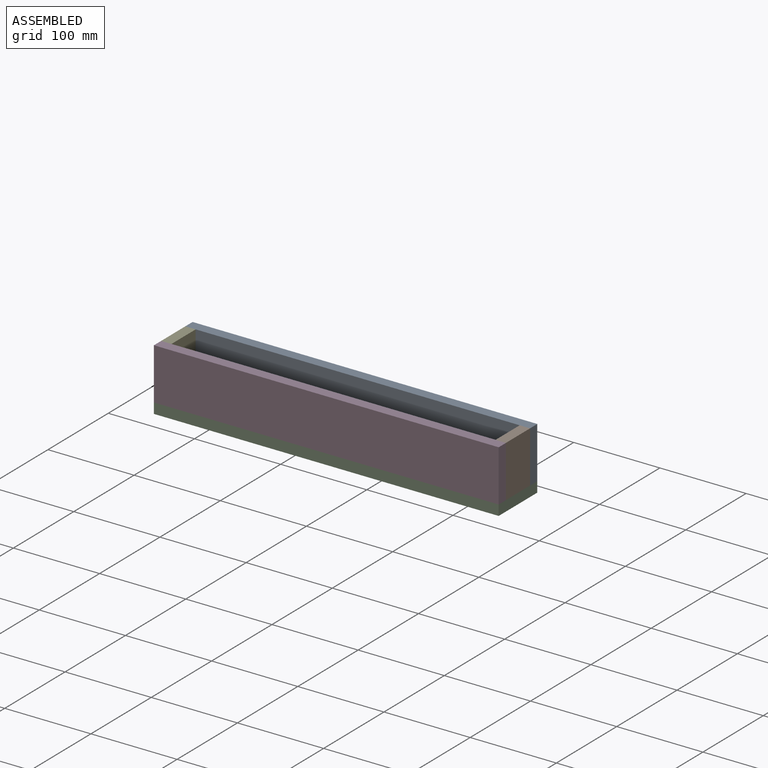
[diagram: assembled view]
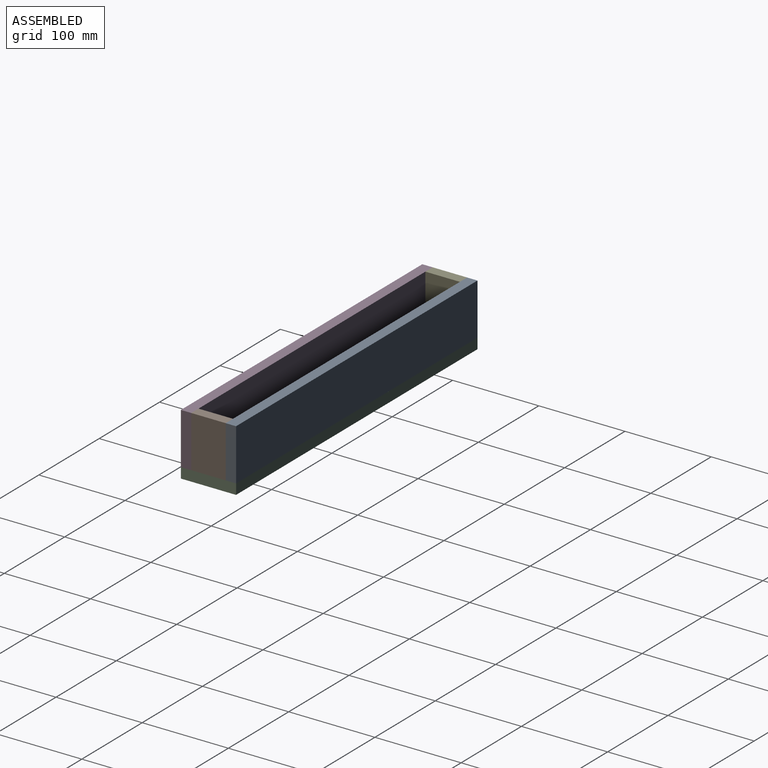
[diagram: assembled view, second angle]
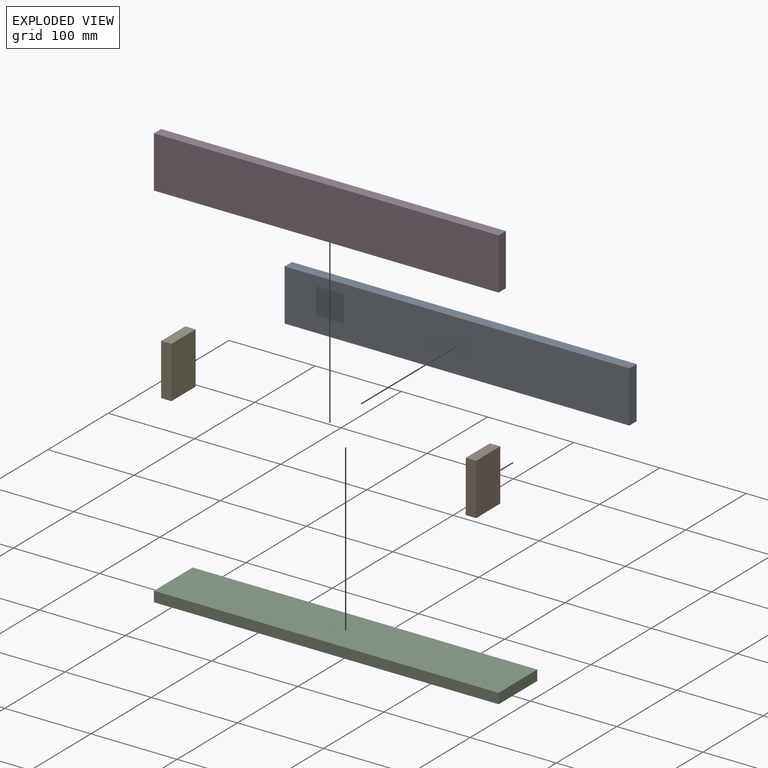
[diagram: exploded view]
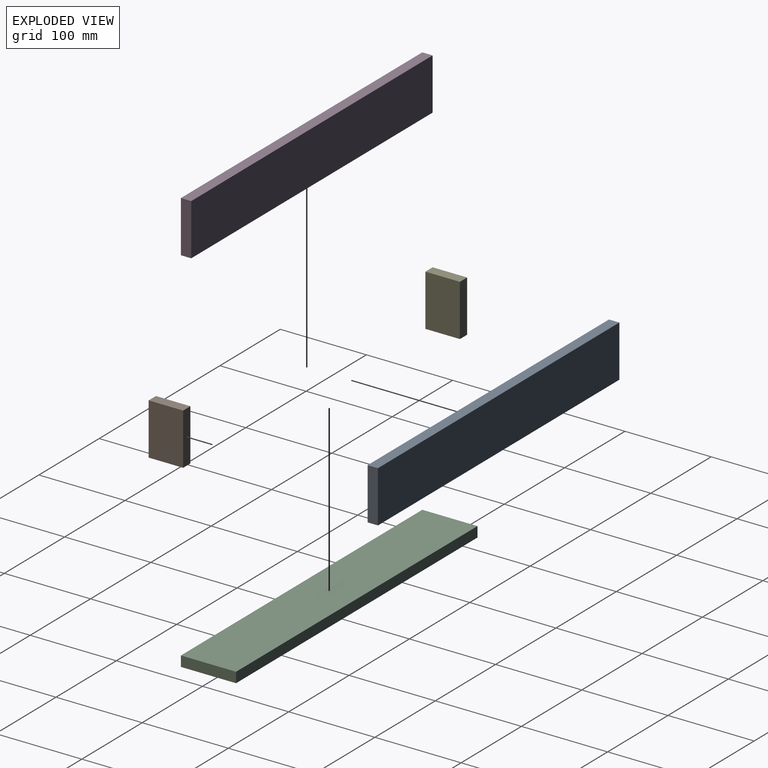
[diagram: exploded view, second angle]
ASSEMBLY  parts=5 mates=4
PART A: 6 faces, bbox 400x12x60 mm
  f0: plane 400x12mm, normal (0,0,1), area 4800mm2, adj f1,f3,f4,f5
  f1: plane 60x12mm, normal (-1,0,0), area 720mm2, adj f0,f2,f4,f5
  f2: plane 400x12mm, normal (0,0,-1), area 4800mm2, adj f1,f3,f4,f5
  f3: plane 60x12mm, normal (1,0,0), area 720mm2, adj f0,f2,f4,f5
  f4: plane 400x60mm, normal (0,-1,0), area 24000mm2, adj f0,f1,f2,f3
  f5: plane 400x60mm, normal (0,1,0), area 24000mm2, adj f0,f1,f2,f3
PART B: 6 faces, bbox 12x40x60 mm
  f0: plane 60x12mm, normal (0,1,0), area 720mm2, adj f1,f3,f4,f5
  f1: plane 40x12mm, normal (0,0,1), area 480mm2, adj f0,f2,f4,f5
  f2: plane 60x12mm, normal (0,-1,0), area 720mm2, adj f1,f3,f4,f5
  f3: plane 40x12mm, normal (0,0,-1), area 480mm2, adj f0,f2,f4,f5
  f4: plane 60x40mm, normal (1,0,0), area 2400mm2, adj f0,f1,f2,f3
  f5: plane 60x40mm, normal (-1,0,0), area 2400mm2, adj f0,f1,f2,f3
PART C: 6 faces, bbox 400x64x12 mm
  f0: plane 64x12mm, normal (1,0,0), area 768mm2, adj f1,f3,f4,f5
  f1: plane 400x12mm, normal (0,1,0), area 4800mm2, adj f0,f2,f4,f5
  f2: plane 64x12mm, normal (-1,0,0), area 768mm2, adj f1,f3,f4,f5
  f3: plane 400x12mm, normal (0,-1,0), area 4800mm2, adj f0,f2,f4,f5
  f4: plane 400x64mm, normal (0,0,1), area 25600mm2, adj f0,f1,f2,f3
  f5: plane 400x64mm, normal (0,0,-1), area 25600mm2, adj f0,f1,f2,f3
PART D: same geometry as A
PART E: same geometry as B
PLACE A rot(axis=(-1,0,0),180deg) t=(42.38,17.85,87.74)mm
PLACE B rot(axis=(-1,0,0),180deg) t=(375,59.88,88.81)mm
PLACE C rot(axis=(-1,0,0),180deg) t=(-32.09,38.04,56.27)mm
PLACE D rot(axis=(-1,0,0),180deg) t=(42.38,-34.15,87.74)mm
PLACE E rot(axis=(-1,0,0),180deg) t=(-13,59.88,88.81)mm
MATE fastened A.f5 <-> E.f2  axis (0,-1,0) through (-13,17.85,116.27)mm
MATE fastened C.f5 <-> A.f0  axis (0,0,-1) through (387,29.85,56.27)mm
MATE fastened A.f5 <-> B.f2  axis (0,-1,0) through (387,17.85,116.27)mm
MATE fastened C.f5 <-> D.f0  axis (0,0,1) through (-13,-34.15,56.27)mm
